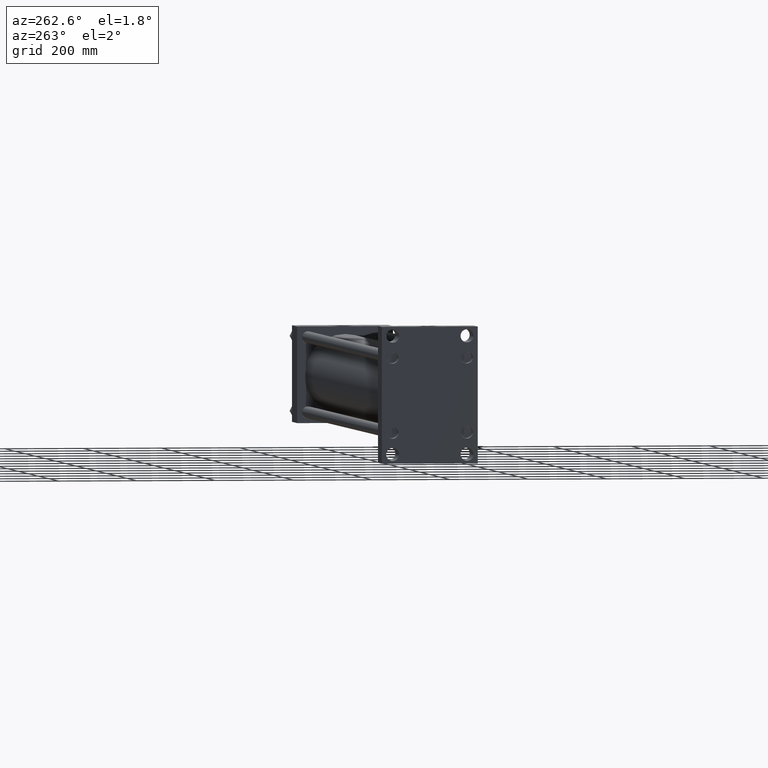
[diagram: clean part render]
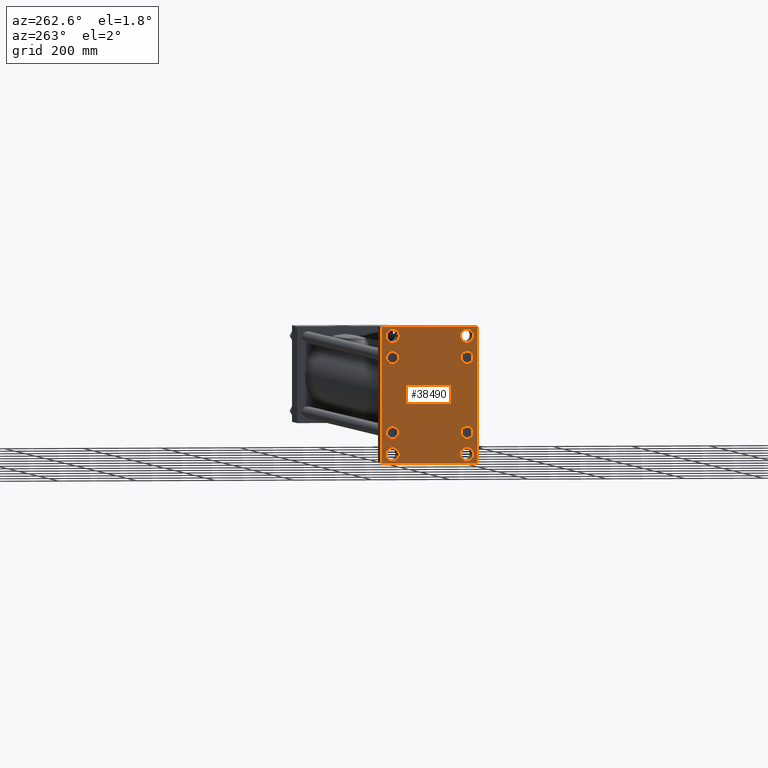
[diagram: same view with one face highlighted and labeled with its STEP entity id]
A machine part, auxiliary view. The second image highlights one B-rep face of the part: STEP entity #38490.
In plain terms, the highlighted planar face has unit normal (-1, 0, 0).
Its self-contained STEP definition (entity closure, byte-faithful):
#46 = CIRCLE ( 'NONE', #46523, 17.00000000000012790 ) ;
#113 = CARTESIAN_POINT ( 'NONE',  ( 0.000000000000000000, -94.99999999999998579, 149.9999999999999716 ) ) ;
#120 = LINE ( 'NONE', #3197, #40787 ) ;
#161 = VERTEX_POINT ( 'NONE', #44462 ) ;
#285 = CARTESIAN_POINT ( 'NONE',  ( 0.000000000000000000, -94.99999999999998579, 167.0000000000000853 ) ) ;
#394 = DIRECTION ( 'NONE',  ( 1.000000000000000000, -0.000000000000000000, 0.000000000000000000 ) ) ;
#422 = VERTEX_POINT ( 'NONE', #31414 ) ;
#1389 = VERTEX_POINT ( 'NONE', #47239 ) ;
#1480 = CIRCLE ( 'NONE', #25128, 15.50000000000006928 ) ;
#1794 = VERTEX_POINT ( 'NONE', #37979 ) ;
#1891 = EDGE_CURVE ( 'NONE', #11726, #29325, #6401, .T. ) ;
#2105 = ORIENTED_EDGE ( 'NONE', *, *, #15667, .T. ) ;
#2179 = LINE ( 'NONE', #42004, #5015 ) ;
#2466 = CARTESIAN_POINT ( 'NONE',  ( -0.000000000000000000, -147.7500000000000284, 147.7500000000000284 ) ) ;
#2857 = EDGE_CURVE ( 'NONE', #36480, #34370, #33604, .T. ) ;
#3197 = CARTESIAN_POINT ( 'NONE',  ( 0.000000000000000000, -122.5000000000000568, 173.5000000000000284 ) ) ;
#4252 = FACE_BOUND ( 'NONE', #22778, .T. ) ;
#4349 = EDGE_LOOP ( 'NONE', ( #21665, #9032 ) ) ;
#4501 = DIRECTION ( 'NONE',  ( 0.000000000000000000, 0.000000000000000000, 1.000000000000000000 ) ) ;
#4651 = VERTEX_POINT ( 'NONE', #7183 ) ;
#4684 = AXIS2_PLACEMENT_3D ( 'NONE', #22090, #45820, #45560 ) ;
#5015 = VECTOR ( 'NONE', #7032, 1000.000000000000000 ) ;
#5055 = AXIS2_PLACEMENT_3D ( 'NONE', #48810, #21745, #13349 ) ;
#5700 = ORIENTED_EDGE ( 'NONE', *, *, #2857, .T. ) ;
#5742 = LINE ( 'NONE', #48404, #25061 ) ;
#6292 = CIRCLE ( 'NONE', #40511, 15.50000000000006928 ) ;
#6401 = CIRCLE ( 'NONE', #36564, 15.50000000000006928 ) ;
#6582 = CIRCLE ( 'NONE', #44193, 15.50000000000001421 ) ;
#6822 = LINE ( 'NONE', #2466, #20965 ) ;
#6957 = EDGE_CURVE ( 'NONE', #50375, #1794, #31010, .T. ) ;
#7032 = DIRECTION ( 'NONE',  ( 0.000000000000000000, 0.000000000000000000, -1.000000000000000000 ) ) ;
#7183 = CARTESIAN_POINT ( 'NONE',  ( 0.000000000000000000, -95.09999999999996589, -110.6000000000000654 ) ) ;
#7234 = DIRECTION ( 'NONE',  ( 1.000000000000000000, -0.000000000000000000, 0.000000000000000000 ) ) ;
#7580 = CARTESIAN_POINT ( 'NONE',  ( 0.000000000000000000, 94.99999999999998579, 149.9999999999999716 ) ) ;
#7730 = VERTEX_POINT ( 'NONE', #31658 ) ;
#7841 = FACE_OUTER_BOUND ( 'NONE', #42469, .T. ) ;
#8029 = DIRECTION ( 'NONE',  ( 1.000000000000000000, -0.000000000000000000, 0.000000000000000000 ) ) ;
#8091 = FACE_BOUND ( 'NONE', #34009, .T. ) ;
#8581 = AXIS2_PLACEMENT_3D ( 'NONE', #47069, #12620, #35842 ) ;
#9032 = ORIENTED_EDGE ( 'NONE', *, *, #11278, .T. ) ;
#9238 = VERTEX_POINT ( 'NONE', #30048 ) ;
#9837 = CIRCLE ( 'NONE', #46417, 15.50000000000001421 ) ;
#9982 = CIRCLE ( 'NONE', #38517, 17.00000000000012790 ) ;
#10439 = DIRECTION ( 'NONE',  ( 0.000000000000000000, 0.000000000000000000, 1.000000000000000000 ) ) ;
#10982 = CARTESIAN_POINT ( 'NONE',  ( 0.000000000000000000, 94.99999999999998579, -150.0000000000000000 ) ) ;
#11102 = EDGE_CURVE ( 'NONE', #4651, #161, #6582, .T. ) ;
#11278 = EDGE_CURVE ( 'NONE', #40118, #45540, #40902, .T. ) ;
#11326 = VERTEX_POINT ( 'NONE', #16913 ) ;
#11726 = VERTEX_POINT ( 'NONE', #45409 ) ;
#12038 = ORIENTED_EDGE ( 'NONE', *, *, #47705, .T. ) ;
#12620 = DIRECTION ( 'NONE',  ( 1.000000000000000000, -0.000000000000000000, 0.000000000000000000 ) ) ;
#13001 = DIRECTION ( 'NONE',  ( 0.000000000000000000, -1.000000000000000000, -2.265761274745217480E-16 ) ) ;
#13078 = ORIENTED_EDGE ( 'NONE', *, *, #33795, .T. ) ;
#13349 = DIRECTION ( 'NONE',  ( 0.000000000000000000, 0.000000000000000000, 1.000000000000000000 ) ) ;
#13409 = CARTESIAN_POINT ( 'NONE',  ( 0.000000000000000000, 94.99999999999998579, 167.0000000000000853 ) ) ;
#13426 = EDGE_CURVE ( 'NONE', #1794, #22056, #2179, .T. ) ;
#13904 = CARTESIAN_POINT ( 'NONE',  ( 0.000000000000000000, -95.09999999999996589, -95.10000000000005116 ) ) ;
#14472 = CIRCLE ( 'NONE', #19387, 17.00000000000012790 ) ;
#14550 = CARTESIAN_POINT ( 'NONE',  ( 0.000000000000000000, 122.4999999999999716, 173.5000000000000568 ) ) ;
#15007 = CARTESIAN_POINT ( 'NONE',  ( 0.000000000000000000, 94.99999999999998579, -132.9999999999998579 ) ) ;
#15229 = DIRECTION ( 'NONE',  ( 0.000000000000000000, 0.000000000000000000, 1.000000000000000000 ) ) ;
#15667 = EDGE_CURVE ( 'NONE', #1389, #25194, #9982, .T. ) ;
#15769 = CARTESIAN_POINT ( 'NONE',  ( 0.000000000000000000, 121.9999999999999716, 173.5000000000000568 ) ) ;
#15911 = CARTESIAN_POINT ( 'NONE',  ( 0.000000000000000000, 95.09999999999999432, -79.59999999999995168 ) ) ;
#16215 = VECTOR ( 'NONE', #42521, 1000.000000000000000 ) ;
#16475 = ORIENTED_EDGE ( 'NONE', *, *, #28479, .T. ) ;
#16913 = CARTESIAN_POINT ( 'NONE',  ( 0.000000000000000000, 121.9999999999999716, -173.4999999999999432 ) ) ;
#16931 = ORIENTED_EDGE ( 'NONE', *, *, #25303, .T. ) ;
#17176 = DIRECTION ( 'NONE',  ( 0.000000000000000000, 0.000000000000000000, 1.000000000000000000 ) ) ;
#17837 = DIRECTION ( 'NONE',  ( 1.000000000000000000, -0.000000000000000000, 0.000000000000000000 ) ) ;
#18737 = EDGE_LOOP ( 'NONE', ( #44463, #49576 ) ) ;
#19025 = AXIS2_PLACEMENT_3D ( 'NONE', #7580, #19084, #27743 ) ;
#19077 = EDGE_CURVE ( 'NONE', #20767, #20779, #46877, .T. ) ;
#19084 = DIRECTION ( 'NONE',  ( 1.000000000000000000, -0.000000000000000000, 0.000000000000000000 ) ) ;
#19144 = VERTEX_POINT ( 'NONE', #34839 ) ;
#19199 = EDGE_CURVE ( 'NONE', #7730, #40210, #20796, .T. ) ;
#19224 = EDGE_LOOP ( 'NONE', ( #27194, #2105 ) ) ;
#19387 = AXIS2_PLACEMENT_3D ( 'NONE', #10982, #26554, #27489 ) ;
#19590 = FACE_BOUND ( 'NONE', #19224, .T. ) ;
#20354 = FACE_BOUND ( 'NONE', #32981, .T. ) ;
#20514 = AXIS2_PLACEMENT_3D ( 'NONE', #28102, #36267, #47994 ) ;
#20615 = CARTESIAN_POINT ( 'NONE',  ( 0.000000000000000000, 0.000000000000000000, 0.000000000000000000 ) ) ;
#20767 = VERTEX_POINT ( 'NONE', #13409 ) ;
#20779 = VERTEX_POINT ( 'NONE', #32560 ) ;
#20796 = CIRCLE ( 'NONE', #8581, 15.50000000000001421 ) ;
#20965 = VECTOR ( 'NONE', #26736, 1000.000000000000114 ) ;
#21004 = CIRCLE ( 'NONE', #4684, 15.50000000000006928 ) ;
#21215 = VECTOR ( 'NONE', #13001, 1000.000000000000000 ) ;
#21665 = ORIENTED_EDGE ( 'NONE', *, *, #28326, .T. ) ;
#21745 = DIRECTION ( 'NONE',  ( 1.000000000000000000, -0.000000000000000000, 0.000000000000000000 ) ) ;
#21807 = DIRECTION ( 'NONE',  ( 0.000000000000000000, 0.000000000000000000, 1.000000000000000000 ) ) ;
#22001 = DIRECTION ( 'NONE',  ( 1.000000000000000000, -0.000000000000000000, 0.000000000000000000 ) ) ;
#22056 = VERTEX_POINT ( 'NONE', #49827 ) ;
#22090 = CARTESIAN_POINT ( 'NONE',  ( 0.000000000000000000, 95.09999999999999432, -95.10000000000002274 ) ) ;
#22349 = CARTESIAN_POINT ( 'NONE',  ( 0.000000000000000000, 147.7500000000000284, 147.7500000000000284 ) ) ;
#22598 = DIRECTION ( 'NONE',  ( 1.000000000000000000, -0.000000000000000000, 0.000000000000000000 ) ) ;
#22778 = EDGE_LOOP ( 'NONE', ( #39474, #44782 ) ) ;
#23424 = DIRECTION ( 'NONE',  ( -0.000000000000000000, 0.000000000000000000, 1.000000000000000000 ) ) ;
#24194 = FACE_BOUND ( 'NONE', #24291, .T. ) ;
#24291 = EDGE_LOOP ( 'NONE', ( #12038, #32996 ) ) ;
#25061 = VECTOR ( 'NONE', #36656, 1000.000000000000114 ) ;
#25128 = AXIS2_PLACEMENT_3D ( 'NONE', #41136, #22001, #17176 ) ;
#25194 = VERTEX_POINT ( 'NONE', #41217 ) ;
#25303 = EDGE_CURVE ( 'NONE', #44141, #49391, #34818, .T. ) ;
#25699 = ORIENTED_EDGE ( 'NONE', *, *, #27485, .T. ) ;
#25921 = CARTESIAN_POINT ( 'NONE',  ( 0.000000000000000000, -122.0000000000000000, 173.5000000000000284 ) ) ;
#26126 = ORIENTED_EDGE ( 'NONE', *, *, #39720, .T. ) ;
#26554 = DIRECTION ( 'NONE',  ( 1.000000000000000000, -0.000000000000000000, 0.000000000000000000 ) ) ;
#26649 = CARTESIAN_POINT ( 'NONE',  ( 0.000000000000000000, -95.09999999999996589, 95.10000000000005116 ) ) ;
#26736 = DIRECTION ( 'NONE',  ( -0.000000000000000000, 0.7071067811865474617, 0.7071067811865474617 ) ) ;
#27161 = CARTESIAN_POINT ( 'NONE',  ( 0.000000000000000000, -122.0000000000000000, -173.5000000000000000 ) ) ;
#27194 = ORIENTED_EDGE ( 'NONE', *, *, #41235, .T. ) ;
#27207 = DIRECTION ( 'NONE',  ( 0.000000000000000000, 0.000000000000000000, 1.000000000000000000 ) ) ;
#27243 = EDGE_CURVE ( 'NONE', #9238, #28497, #6822, .T. ) ;
#27280 = ORIENTED_EDGE ( 'NONE', *, *, #27243, .T. ) ;
#27399 = EDGE_CURVE ( 'NONE', #422, #19144, #6292, .T. ) ;
#27485 = EDGE_CURVE ( 'NONE', #22056, #11326, #5742, .T. ) ;
#27489 = DIRECTION ( 'NONE',  ( 0.000000000000000000, 0.000000000000000000, 1.000000000000000000 ) ) ;
#27743 = DIRECTION ( 'NONE',  ( 0.000000000000000000, 0.000000000000000000, 1.000000000000000000 ) ) ;
#28102 = CARTESIAN_POINT ( 'NONE',  ( 0.000000000000000000, -94.99999999999998579, -150.0000000000000000 ) ) ;
#28217 = ORIENTED_EDGE ( 'NONE', *, *, #29420, .T. ) ;
#28326 = EDGE_CURVE ( 'NONE', #45540, #40118, #14472, .T. ) ;
#28376 = ORIENTED_EDGE ( 'NONE', *, *, #6957, .T. ) ;
#28479 = EDGE_CURVE ( 'NONE', #29325, #11726, #21004, .T. ) ;
#28497 = VERTEX_POINT ( 'NONE', #25921 ) ;
#29325 = VERTEX_POINT ( 'NONE', #15911 ) ;
#29385 = VECTOR ( 'NONE', #38415, 1000.000000000000114 ) ;
#29420 = EDGE_CURVE ( 'NONE', #19144, #422, #1480, .T. ) ;
#29485 = DIRECTION ( 'NONE',  ( 1.000000000000000000, -0.000000000000000000, 0.000000000000000000 ) ) ;
#29629 = CIRCLE ( 'NONE', #19025, 17.00000000000012790 ) ;
#29701 = CIRCLE ( 'NONE', #39478, 15.50000000000001421 ) ;
#29772 = CARTESIAN_POINT ( 'NONE',  ( 0.000000000000000000, -94.99999999999998579, 132.9999999999998295 ) ) ;
#30024 = ORIENTED_EDGE ( 'NONE', *, *, #35334, .F. ) ;
#30048 = CARTESIAN_POINT ( 'NONE',  ( 0.000000000000000000, -122.5000000000000568, 173.0000000000000284 ) ) ;
#30131 = DIRECTION ( 'NONE',  ( 0.000000000000000000, -1.000000000000000000, -1.132880637372608740E-16 ) ) ;
#30784 = CARTESIAN_POINT ( 'NONE',  ( 0.000000000000000000, -147.7500000000033822, -147.7499999999951683 ) ) ;
#31010 = LINE ( 'NONE', #22349, #29385 ) ;
#31087 = DIRECTION ( 'NONE',  ( -1.000000000000000000, 0.000000000000000000, -0.000000000000000000 ) ) ;
#31389 = AXIS2_PLACEMENT_3D ( 'NONE', #37659, #22598, #37162 ) ;
#31414 = CARTESIAN_POINT ( 'NONE',  ( 0.000000000000000000, 95.09999999999999432, 110.6000000000000938 ) ) ;
#31531 = AXIS2_PLACEMENT_3D ( 'NONE', #46828, #39401, #46573 ) ;
#31658 = CARTESIAN_POINT ( 'NONE',  ( 0.000000000000000000, -95.09999999999996589, 79.60000000000003695 ) ) ;
#31978 = CARTESIAN_POINT ( 'NONE',  ( 0.000000000000000000, 94.99999999999998579, -167.0000000000001137 ) ) ;
#32174 = EDGE_LOOP ( 'NONE', ( #16931, #26126 ) ) ;
#32560 = CARTESIAN_POINT ( 'NONE',  ( 0.000000000000000000, 94.99999999999998579, 132.9999999999998295 ) ) ;
#32766 = CIRCLE ( 'NONE', #20514, 17.00000000000012790 ) ;
#32981 = EDGE_LOOP ( 'NONE', ( #47111, #28217 ) ) ;
#32996 = ORIENTED_EDGE ( 'NONE', *, *, #11102, .T. ) ;
#33604 = LINE ( 'NONE', #30784, #16215 ) ;
#33795 = EDGE_CURVE ( 'NONE', #11326, #36480, #47972, .T. ) ;
#34009 = EDGE_LOOP ( 'NONE', ( #16475, #46303 ) ) ;
#34370 = VERTEX_POINT ( 'NONE', #49988 ) ;
#34818 = CIRCLE ( 'NONE', #31531, 17.00000000000012790 ) ;
#34839 = CARTESIAN_POINT ( 'NONE',  ( 0.000000000000000000, 95.09999999999999432, 79.59999999999995168 ) ) ;
#35061 = VECTOR ( 'NONE', #30131, 1000.000000000000000 ) ;
#35334 = EDGE_CURVE ( 'NONE', #9238, #34370, #120, .T. ) ;
#35395 = CARTESIAN_POINT ( 'NONE',  ( 0.000000000000000000, -94.99999999999998579, -150.0000000000000000 ) ) ;
#35423 = ORIENTED_EDGE ( 'NONE', *, *, #37221, .F. ) ;
#35726 = CARTESIAN_POINT ( 'NONE',  ( 0.000000000000000000, 122.4999999999999716, -173.4999999999999432 ) ) ;
#35730 = EDGE_CURVE ( 'NONE', #40210, #7730, #9837, .T. ) ;
#35842 = DIRECTION ( 'NONE',  ( 0.000000000000000000, 0.000000000000000000, 1.000000000000000000 ) ) ;
#36267 = DIRECTION ( 'NONE',  ( 1.000000000000000000, -0.000000000000000000, 0.000000000000000000 ) ) ;
#36480 = VERTEX_POINT ( 'NONE', #27161 ) ;
#36564 = AXIS2_PLACEMENT_3D ( 'NONE', #38726, #43052, #4501 ) ;
#36656 = DIRECTION ( 'NONE',  ( -0.000000000000000000, -0.7071067811865474617, -0.7071067811865474617 ) ) ;
#37162 = DIRECTION ( 'NONE',  ( 0.000000000000000000, 0.000000000000000000, 1.000000000000000000 ) ) ;
#37221 = EDGE_CURVE ( 'NONE', #50375, #28497, #49523, .T. ) ;
#37659 = CARTESIAN_POINT ( 'NONE',  ( 0.000000000000000000, 94.99999999999998579, 149.9999999999999716 ) ) ;
#37979 = CARTESIAN_POINT ( 'NONE',  ( 0.000000000000000000, 122.4999999999999716, 173.0000000000000568 ) ) ;
#38415 = DIRECTION ( 'NONE',  ( 0.000000000000000000, 0.7071067811865474617, -0.7071067811865474617 ) ) ;
#38490 = ADVANCED_FACE ( 'NONE', ( #47153, #39224, #19590, #43317, #4252, #24194, #8091, #20354, #7841 ), #46905, .T. ) ;
#38517 = AXIS2_PLACEMENT_3D ( 'NONE', #35395, #394, #15229 ) ;
#38726 = CARTESIAN_POINT ( 'NONE',  ( 0.000000000000000000, 95.09999999999999432, -95.10000000000002274 ) ) ;
#39201 = DIRECTION ( 'NONE',  ( 0.000000000000000000, 0.000000000000000000, 1.000000000000000000 ) ) ;
#39224 = FACE_BOUND ( 'NONE', #32174, .T. ) ;
#39401 = DIRECTION ( 'NONE',  ( 1.000000000000000000, -0.000000000000000000, 0.000000000000000000 ) ) ;
#39474 = ORIENTED_EDGE ( 'NONE', *, *, #35730, .T. ) ;
#39478 = AXIS2_PLACEMENT_3D ( 'NONE', #41563, #17837, #10439 ) ;
#39720 = EDGE_CURVE ( 'NONE', #49391, #44141, #46, .T. ) ;
#40118 = VERTEX_POINT ( 'NONE', #31978 ) ;
#40210 = VERTEX_POINT ( 'NONE', #41626 ) ;
#40511 = AXIS2_PLACEMENT_3D ( 'NONE', #46632, #43293, #39201 ) ;
#40787 = VECTOR ( 'NONE', #42526, 1000.000000000000000 ) ;
#40902 = CIRCLE ( 'NONE', #5055, 17.00000000000012790 ) ;
#41136 = CARTESIAN_POINT ( 'NONE',  ( 0.000000000000000000, 95.09999999999999432, 95.10000000000002274 ) ) ;
#41217 = CARTESIAN_POINT ( 'NONE',  ( 0.000000000000000000, -94.99999999999998579, -132.9999999999998579 ) ) ;
#41235 = EDGE_CURVE ( 'NONE', #25194, #1389, #32766, .T. ) ;
#41563 = CARTESIAN_POINT ( 'NONE',  ( 0.000000000000000000, -95.09999999999996589, -95.10000000000005116 ) ) ;
#41626 = CARTESIAN_POINT ( 'NONE',  ( 0.000000000000000000, -95.09999999999996589, 110.6000000000000654 ) ) ;
#42004 = CARTESIAN_POINT ( 'NONE',  ( 0.000000000000000000, 122.4999999999999716, 173.5000000000000568 ) ) ;
#42469 = EDGE_LOOP ( 'NONE', ( #43569, #25699, #13078, #5700, #30024, #27280, #35423, #28376 ) ) ;
#42521 = DIRECTION ( 'NONE',  ( 0.000000000000000000, -0.7071067811865279218, 0.7071067811865672237 ) ) ;
#42526 = DIRECTION ( 'NONE',  ( 0.000000000000000000, 0.000000000000000000, -1.000000000000000000 ) ) ;
#43052 = DIRECTION ( 'NONE',  ( 1.000000000000000000, -0.000000000000000000, 0.000000000000000000 ) ) ;
#43293 = DIRECTION ( 'NONE',  ( 1.000000000000000000, -0.000000000000000000, 0.000000000000000000 ) ) ;
#43317 = FACE_BOUND ( 'NONE', #4349, .T. ) ;
#43569 = ORIENTED_EDGE ( 'NONE', *, *, #13426, .T. ) ;
#44141 = VERTEX_POINT ( 'NONE', #285 ) ;
#44193 = AXIS2_PLACEMENT_3D ( 'NONE', #13904, #29485, #21807 ) ;
#44462 = CARTESIAN_POINT ( 'NONE',  ( 0.000000000000000000, -95.09999999999996589, -79.60000000000003695 ) ) ;
#44463 = ORIENTED_EDGE ( 'NONE', *, *, #19077, .T. ) ;
#44782 = ORIENTED_EDGE ( 'NONE', *, *, #19199, .T. ) ;
#45409 = CARTESIAN_POINT ( 'NONE',  ( 0.000000000000000000, 95.09999999999999432, -110.6000000000000938 ) ) ;
#45462 = EDGE_CURVE ( 'NONE', #20779, #20767, #29629, .T. ) ;
#45540 = VERTEX_POINT ( 'NONE', #15007 ) ;
#45560 = DIRECTION ( 'NONE',  ( 0.000000000000000000, 0.000000000000000000, 1.000000000000000000 ) ) ;
#45820 = DIRECTION ( 'NONE',  ( 1.000000000000000000, -0.000000000000000000, 0.000000000000000000 ) ) ;
#46289 = DIRECTION ( 'NONE',  ( 0.000000000000000000, 0.000000000000000000, 1.000000000000000000 ) ) ;
#46303 = ORIENTED_EDGE ( 'NONE', *, *, #1891, .T. ) ;
#46417 = AXIS2_PLACEMENT_3D ( 'NONE', #26649, #7234, #46289 ) ;
#46523 = AXIS2_PLACEMENT_3D ( 'NONE', #113, #8029, #27207 ) ;
#46573 = DIRECTION ( 'NONE',  ( 0.000000000000000000, 0.000000000000000000, 1.000000000000000000 ) ) ;
#46632 = CARTESIAN_POINT ( 'NONE',  ( 0.000000000000000000, 95.09999999999999432, 95.10000000000002274 ) ) ;
#46828 = CARTESIAN_POINT ( 'NONE',  ( 0.000000000000000000, -94.99999999999998579, 149.9999999999999716 ) ) ;
#46877 = CIRCLE ( 'NONE', #31389, 17.00000000000012790 ) ;
#46905 = PLANE ( 'NONE',  #49740 ) ;
#47069 = CARTESIAN_POINT ( 'NONE',  ( 0.000000000000000000, -95.09999999999996589, 95.10000000000005116 ) ) ;
#47111 = ORIENTED_EDGE ( 'NONE', *, *, #27399, .T. ) ;
#47153 = FACE_BOUND ( 'NONE', #18737, .T. ) ;
#47239 = CARTESIAN_POINT ( 'NONE',  ( 0.000000000000000000, -94.99999999999998579, -167.0000000000001137 ) ) ;
#47705 = EDGE_CURVE ( 'NONE', #161, #4651, #29701, .T. ) ;
#47972 = LINE ( 'NONE', #35726, #21215 ) ;
#47994 = DIRECTION ( 'NONE',  ( 0.000000000000000000, 0.000000000000000000, 1.000000000000000000 ) ) ;
#48404 = CARTESIAN_POINT ( 'NONE',  ( 0.000000000000000000, 147.7499999999999432, -147.7499999999999432 ) ) ;
#48810 = CARTESIAN_POINT ( 'NONE',  ( 0.000000000000000000, 94.99999999999998579, -150.0000000000000000 ) ) ;
#49391 = VERTEX_POINT ( 'NONE', #29772 ) ;
#49523 = LINE ( 'NONE', #14550, #35061 ) ;
#49576 = ORIENTED_EDGE ( 'NONE', *, *, #45462, .T. ) ;
#49740 = AXIS2_PLACEMENT_3D ( 'NONE', #20615, #31087, #23424 ) ;
#49827 = CARTESIAN_POINT ( 'NONE',  ( 0.000000000000000000, 122.4999999999999716, -172.9999999999999432 ) ) ;
#49988 = CARTESIAN_POINT ( 'NONE',  ( 0.000000000000000000, -122.5000000000000568, -172.9999999999999716 ) ) ;
#50375 = VERTEX_POINT ( 'NONE', #15769 ) ;